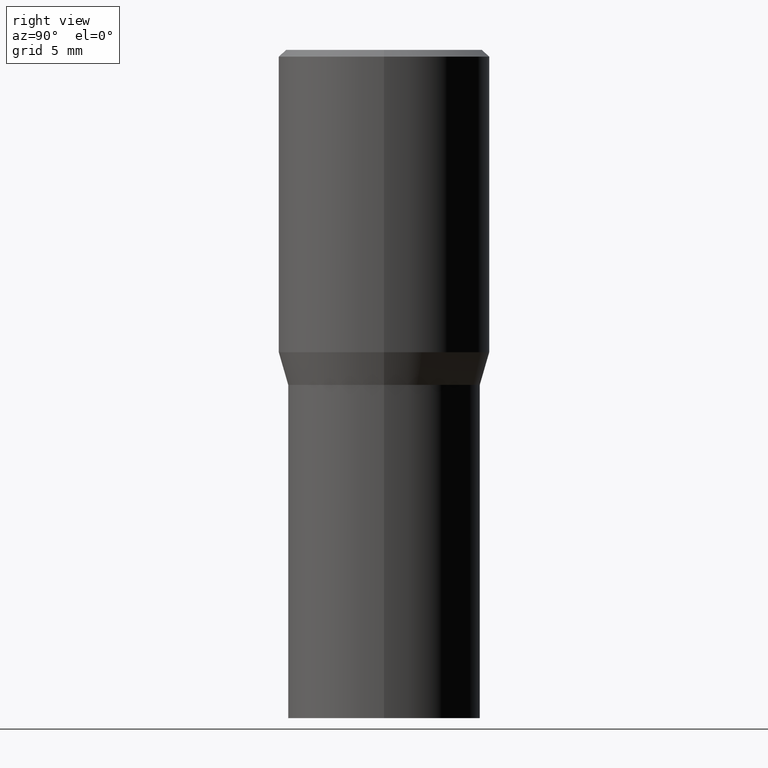
[diagram: clean part render]
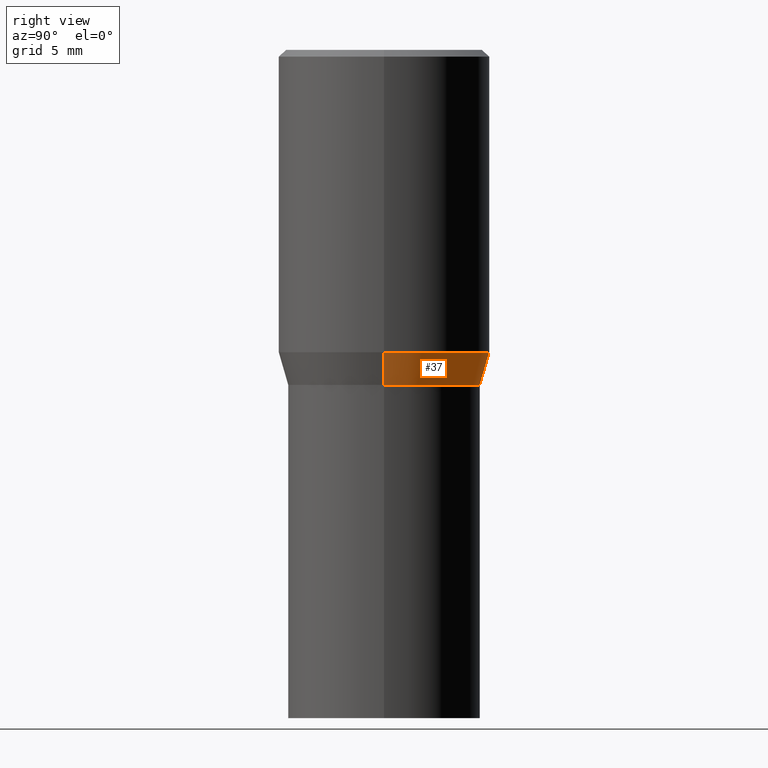
[diagram: same view with one face highlighted and labeled with its STEP entity id]
A machine part, right view. The second image highlights one B-rep face of the part: STEP entity #37.
In plain terms, the highlighted conical surface has half-angle 15 deg.
Its self-contained STEP definition (entity closure, byte-faithful):
#10 = CARTESIAN_POINT ( 'NONE',  ( -0.2361999999999999933, -6.912449449524502887E-16, -0.6786652016312719748 ) ) ;
#24 = EDGE_CURVE ( 'NONE', #27, #309, #285, .T. ) ;
#27 = VERTEX_POINT ( 'NONE', #150 ) ;
#33 = DIRECTION ( 'NONE',  ( -2.445468806185136597E-29, 3.491481338843145583E-15, 1.000000000000000000 ) ) ;
#37 = ADVANCED_FACE ( 'NONE', ( #282 ), #90, .T. ) ;
#46 = EDGE_CURVE ( 'NONE', #27, #255, #98, .T. ) ;
#78 = DIRECTION ( 'NONE',  ( -2.445468806185136597E-29, 3.491481338843145583E-15, 1.000000000000000000 ) ) ;
#82 = CIRCLE ( 'NONE', #322, 0.2361999999999999933 ) ;
#90 = CONICAL_SURFACE ( 'NONE', #286, 0.2165500000000000203, 0.2617993877991505736 ) ;
#98 = CIRCLE ( 'NONE', #227, 0.2165500000000000203 ) ;
#100 = ORIENTED_EDGE ( 'NONE', *, *, #24, .F. ) ;
#102 = DIRECTION ( 'NONE',  ( 1.000000000000000000, -6.982962677686266711E-15, 0.000000000000000000 ) ) ;
#106 = ORIENTED_EDGE ( 'NONE', *, *, #379, .T. ) ;
#150 = CARTESIAN_POINT ( 'NONE',  ( 0.2165500000000000203, -4.137754534663007109E-15, -0.7520000000000001128 ) ) ;
#159 = DIRECTION ( 'NONE',  ( 0.2588190451025218497, 1.565188264969618221E-15, 0.9659258262890679791 ) ) ;
#160 = CARTESIAN_POINT ( 'NONE',  ( -0.2165500000000000203, -1.086913672521548598E-15, -0.7520000000000001128 ) ) ;
#180 = VERTEX_POINT ( 'NONE', #10 ) ;
#191 = CARTESIAN_POINT ( 'NONE',  ( 0.2361999999999999933, -4.018922671287303208E-15, -0.6786652016312719748 ) ) ;
#193 = CARTESIAN_POINT ( 'NONE',  ( -0.2165500000000000203, -8.890793087369993447E-16, -0.7520000000000001128 ) ) ;
#195 = LINE ( 'NONE', #160, #207 ) ;
#207 = VECTOR ( 'NONE', #294, 39.37007874015748143 ) ;
#210 = CARTESIAN_POINT ( 'NONE',  ( 0.2165500000000000203, -4.137754534663007109E-15, -0.7520000000000001128 ) ) ;
#219 = CARTESIAN_POINT ( 'NONE',  ( 1.838992542251222813E-29, -2.625593966810045497E-15, -0.7520000000000001128 ) ) ;
#227 = AXIS2_PLACEMENT_3D ( 'NONE', #466, #427, #328 ) ;
#255 = VERTEX_POINT ( 'NONE', #193 ) ;
#269 = CARTESIAN_POINT ( 'NONE',  ( 1.659654580432621677E-29, -2.369546886817807077E-15, -0.6786652016312719748 ) ) ;
#282 = FACE_OUTER_BOUND ( 'NONE', #348, .T. ) ;
#285 = LINE ( 'NONE', #210, #306 ) ;
#286 = AXIS2_PLACEMENT_3D ( 'NONE', #219, #33, #102 ) ;
#294 = DIRECTION ( 'NONE',  ( -0.2588190451025218497, 5.211531920934553408E-15, 0.9659258262890679791 ) ) ;
#306 = VECTOR ( 'NONE', #159, 39.37007874015748143 ) ;
#309 = VERTEX_POINT ( 'NONE', #191 ) ;
#322 = AXIS2_PLACEMENT_3D ( 'NONE', #269, #78, #460 ) ;
#328 = DIRECTION ( 'NONE',  ( 1.000000000000000000, -6.982962677686266711E-15, 0.000000000000000000 ) ) ;
#348 = EDGE_LOOP ( 'NONE', ( #458, #106, #361, #100 ) ) ;
#361 = ORIENTED_EDGE ( 'NONE', *, *, #425, .F. ) ;
#379 = EDGE_CURVE ( 'NONE', #255, #180, #195, .T. ) ;
#425 = EDGE_CURVE ( 'NONE', #309, #180, #82, .T. ) ;
#427 = DIRECTION ( 'NONE',  ( -2.445468806185136597E-29, 3.491481338843145583E-15, 1.000000000000000000 ) ) ;
#458 = ORIENTED_EDGE ( 'NONE', *, *, #46, .T. ) ;
#460 = DIRECTION ( 'NONE',  ( 1.000000000000000000, -6.982962677686266711E-15, 0.000000000000000000 ) ) ;
#466 = CARTESIAN_POINT ( 'NONE',  ( 1.838992542251222813E-29, -2.625593966810045497E-15, -0.7520000000000001128 ) ) ;